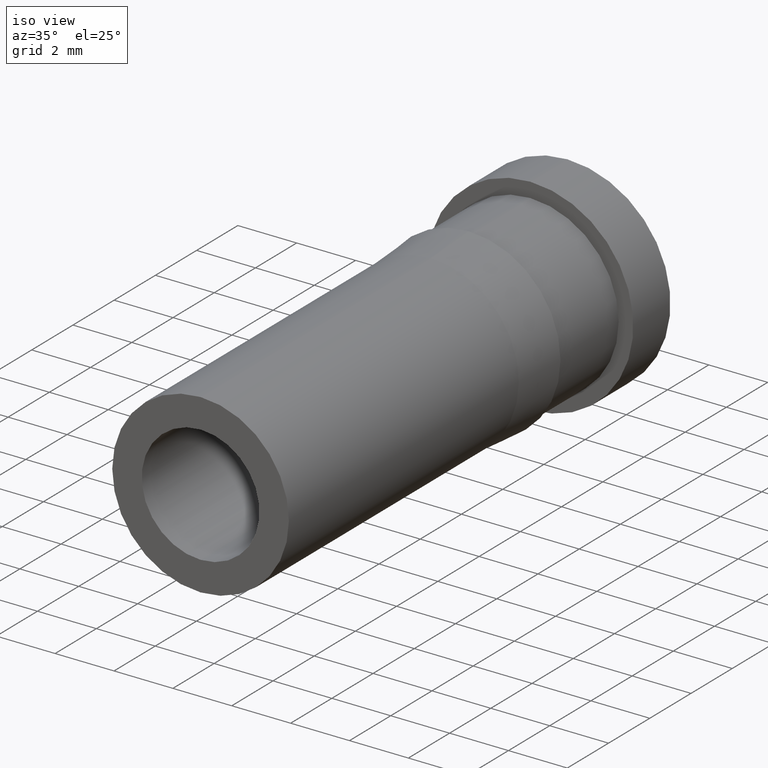
[diagram: clean part render]
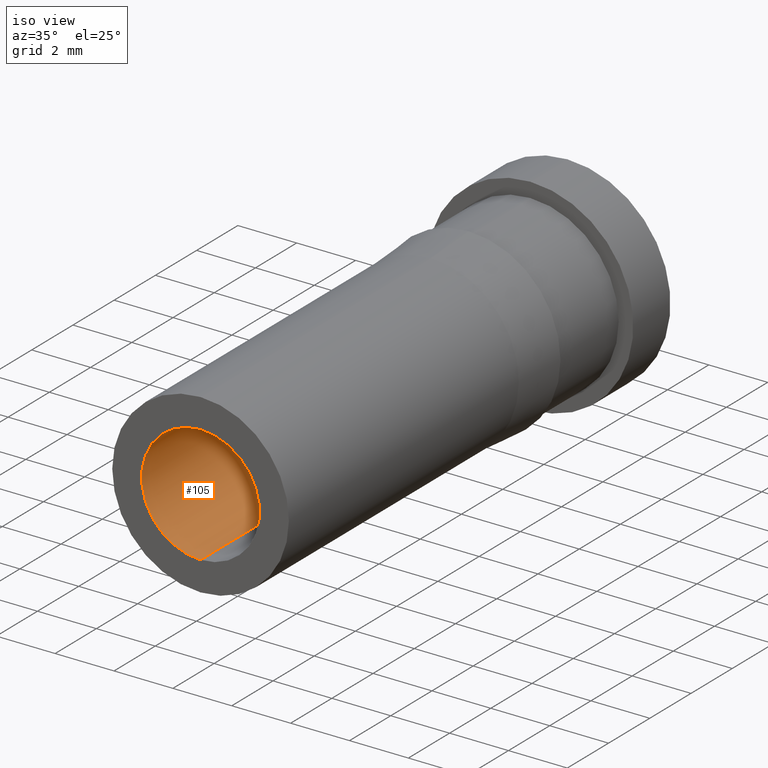
[diagram: same view with one face highlighted and labeled with its STEP entity id]
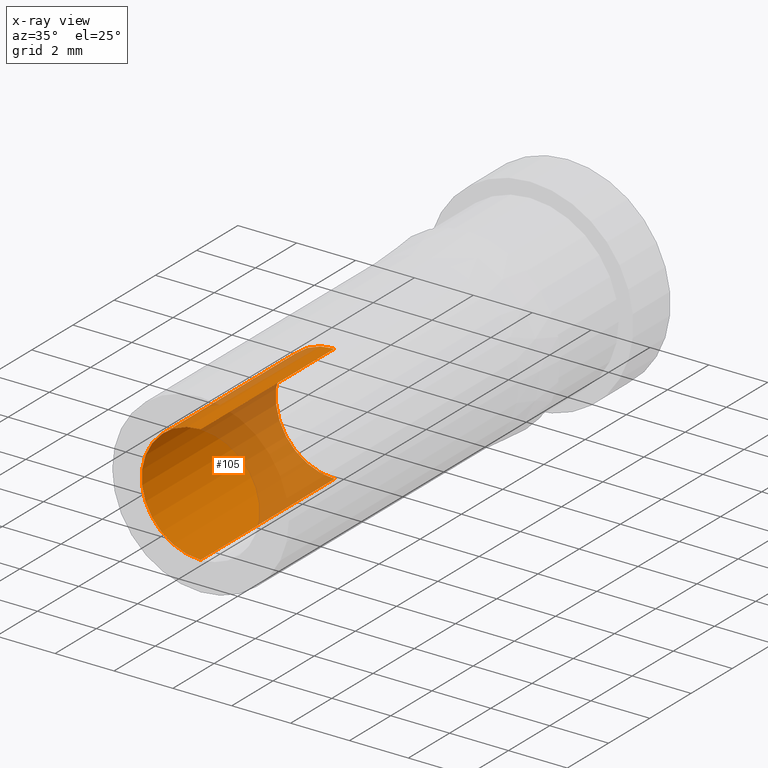
[diagram: x-ray of the same camera — body ghosted, the highlighted face saturated]
A machine part, iso view. The second image highlights one B-rep face of the part: STEP entity #105.
The next image is the same camera in x-ray: the body ghosted, the highlighted face saturated — about 37% of this face is hidden behind the body in this view.
In plain terms, the highlighted cylindrical surface (partial cylindrical patch) has radius 2 mm, axis along (-0, -1, -0).
Its self-contained STEP definition (entity closure, byte-faithful):
#2 = AXIS2_PLACEMENT_3D ( 'NONE', #331, #398, #437 ) ;
#20 = AXIS2_PLACEMENT_3D ( 'NONE', #100, #268, #303 ) ;
#22 = VERTEX_POINT ( 'NONE', #357 ) ;
#26 = EDGE_CURVE ( 'NONE', #22, #134, #184, .T. ) ;
#32 = LINE ( 'NONE', #451, #452 ) ;
#38 = EDGE_CURVE ( 'NONE', #113, #22, #397, .T. ) ;
#55 = ORIENTED_EDGE ( 'NONE', *, *, #38, .F. ) ;
#93 = AXIS2_PLACEMENT_3D ( 'NONE', #307, #202, #411 ) ;
#100 = CARTESIAN_POINT ( 'NONE',  ( 0.0000000000000000000, -17.80000000000000071, 0.0000000000000000000 ) ) ;
#105 = ADVANCED_FACE ( 'NONE', ( #167 ), #163, .F. ) ;
#113 = VERTEX_POINT ( 'NONE', #236 ) ;
#126 = EDGE_CURVE ( 'NONE', #329, #134, #239, .T. ) ;
#134 = VERTEX_POINT ( 'NONE', #406 ) ;
#163 = CYLINDRICAL_SURFACE ( 'NONE', #20, 1.999999999999999556 ) ;
#167 = FACE_OUTER_BOUND ( 'NONE', #168, .T. ) ;
#168 = EDGE_LOOP ( 'NONE', ( #55, #186, #271, #219 ) ) ;
#184 = LINE ( 'NONE', #190, #250 ) ;
#186 = ORIENTED_EDGE ( 'NONE', *, *, #208, .T. ) ;
#190 = CARTESIAN_POINT ( 'NONE',  ( 0.0000000000000000000, -17.80000000000000071, -1.999999999999999556 ) ) ;
#202 = DIRECTION ( 'NONE',  ( -0.0000000000000000000, -1.000000000000000000, -0.0000000000000000000 ) ) ;
#208 = EDGE_CURVE ( 'NONE', #113, #329, #32, .T. ) ;
#219 = ORIENTED_EDGE ( 'NONE', *, *, #26, .F. ) ;
#236 = CARTESIAN_POINT ( 'NONE',  ( 2.449293598294705428E-16, -11.29999999999999893, 1.999999999999999112 ) ) ;
#239 = CIRCLE ( 'NONE', #93, 2.000000000000000000 ) ;
#250 = VECTOR ( 'NONE', #333, 1000.000000000000000 ) ;
#268 = DIRECTION ( 'NONE',  ( -0.0000000000000000000, -1.000000000000000000, -0.0000000000000000000 ) ) ;
#271 = ORIENTED_EDGE ( 'NONE', *, *, #126, .T. ) ;
#276 = DIRECTION ( 'NONE',  ( -0.0000000000000000000, -1.000000000000000000, -0.0000000000000000000 ) ) ;
#303 = DIRECTION ( 'NONE',  ( 0.0000000000000000000, 0.0000000000000000000, -1.000000000000000000 ) ) ;
#307 = CARTESIAN_POINT ( 'NONE',  ( 0.0000000000000000000, -17.80000000000000071, 0.0000000000000000000 ) ) ;
#329 = VERTEX_POINT ( 'NONE', #354 ) ;
#331 = CARTESIAN_POINT ( 'NONE',  ( 0.0000000000000000000, -11.29999999999999893, 0.0000000000000000000 ) ) ;
#333 = DIRECTION ( 'NONE',  ( -0.0000000000000000000, -1.000000000000000000, -0.0000000000000000000 ) ) ;
#354 = CARTESIAN_POINT ( 'NONE',  ( 2.449293598294706414E-16, -17.80000000000000071, 2.000000000000000000 ) ) ;
#357 = CARTESIAN_POINT ( 'NONE',  ( 0.0000000000000000000, -11.29999999999999893, -1.999999999999999112 ) ) ;
#397 = CIRCLE ( 'NONE', #2, 1.999999999999999112 ) ;
#398 = DIRECTION ( 'NONE',  ( -0.0000000000000000000, -1.000000000000000000, -0.0000000000000000000 ) ) ;
#406 = CARTESIAN_POINT ( 'NONE',  ( 0.0000000000000000000, -17.80000000000000071, -2.000000000000000000 ) ) ;
#411 = DIRECTION ( 'NONE',  ( 0.0000000000000000000, 0.0000000000000000000, -1.000000000000000000 ) ) ;
#437 = DIRECTION ( 'NONE',  ( 0.0000000000000000000, 0.0000000000000000000, -1.000000000000000000 ) ) ;
#451 = CARTESIAN_POINT ( 'NONE',  ( 2.449293598294705921E-16, -17.80000000000000071, 1.999999999999999556 ) ) ;
#452 = VECTOR ( 'NONE', #276, 1000.000000000000000 ) ;